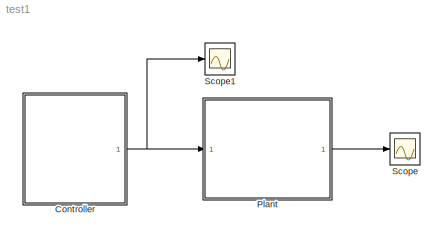
MODEL test1
KIND model
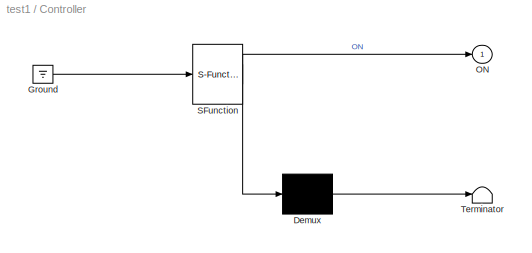
BLOCK [SubSystem] Controller
  ErrorFcn = Stateflow.Translate.translate
  PermitHierarchicalResolution = ExplicitOnly
  Ports = [0, 1]
  RequestExecContextInheritance = off
  SFBlockType = Chart
  SID = 3
  TreatAsAtomicUnit = on
BLOCK [Demux] Controller/ Demux 
  Outputs = 1
  Ports = [1, 1]
  SID = 3::90
BLOCK [Ground] Controller/ Ground 
  SID = 3::92
BLOCK [S-Function] Controller/ SFunction 
  EnableBusSupport = on
  FunctionName = sf_sfun
  PortCounts = [1 2]
  Ports = [1, 2]
  SFcnIsStateOwnerBlock = off
  SFunctionDeploymentMode = off
  SID = 3::89
  Tag = Stateflow S-Function test1 1
BLOCK [Terminator] Controller/ Terminator 
  SID = 3::91
BLOCK [Outport] Controller/ON
  IconDisplay = Port number
  SID = 3::93
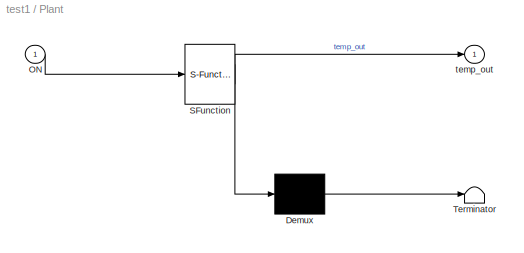
BLOCK [SubSystem] Plant
  ErrorFcn = Stateflow.Translate.translate
  PermitHierarchicalResolution = ExplicitOnly
  Ports = [1, 1]
  RequestExecContextInheritance = off
  SFBlockType = Chart
  SID = 1
  TreatAsAtomicUnit = on
BLOCK [Demux] Plant/ Demux 
  Outputs = 1
  Ports = [1, 1]
  SID = 1::90
BLOCK [S-Function] Plant/ SFunction 
  EnableBusSupport = on
  FunctionName = sf_sfun
  PortCounts = [1 2]
  Ports = [1, 2]
  SFcnIsStateOwnerBlock = off
  SFunctionDeploymentMode = off
  SID = 1::89
  Tag = Stateflow S-Function test1 3
BLOCK [Terminator] Plant/ Terminator 
  SID = 1::91
BLOCK [Inport] Plant/ON
  IconDisplay = Port number
  SID = 1::94
BLOCK [Outport] Plant/temp_out
  IconDisplay = Port number
  SID = 1::93
BLOCK [Scope] Scope
  Floating = off
  NumInputPorts = 1
  Ports = [1]
  SID = 2
  ScopeSpecificationString = Simulink.scopes.TimeScopeBlockCfg('CurrentConfiguration', extmgr.ConfigurationSet(extmgr.Configuration('Core','General UI',true),extmgr.Configuration('Core','Source UI',true),extmgr.Configuration('Sources','WiredSimulink',true),extmgr.Configuration('Visuals','Time Domain',true,'SerializedDisplays',{struct('MinYLimReal','-6.25','MaxYLimReal','56.25','YLabelReal','','MinYLimMag','0.00000','MaxYLimMa...<+1365ch>
BLOCK [Scope] Scope1
  Floating = off
  NumInputPorts = 1
  Ports = [1]
  SID = 4
  ScopeSpecificationString = Simulink.scopes.TimeScopeBlockCfg('CurrentConfiguration', extmgr.ConfigurationSet(extmgr.Configuration('Core','General UI',true),extmgr.Configuration('Core','Source UI',true),extmgr.Configuration('Sources','WiredSimulink',true,'DataLoggingVariableName','ScopeData1'),extmgr.Configuration('Visuals','Time Domain',true,'SerializedDisplays',{struct('MinYLimReal','-0.125','MaxYLimReal','1.125','YLabelRe...<+1382ch>
LINE Controller/ Demux :1 -> Controller/ Terminator :1
LINE Controller/ Ground :1 -> Controller/ SFunction :1
LINE Controller/ SFunction :1 -> Controller/ Demux :1
LINE Controller/ SFunction :2 -> Controller/ON:1
NET Controller:1 -> Plant:1, Scope1:1
LINE Plant/ Demux :1 -> Plant/ Terminator :1
LINE Plant/ SFunction :1 -> Plant/ Demux :1
LINE Plant/ SFunction :2 -> Plant/temp_out:1
LINE Plant/ON:1 -> Plant/ SFunction :1
LINE Plant:1 -> Scope:1
note: NET lines group one-source signal fan-out (src -> all destinations, sorted); 1:1 wires keep LINE
CHART Controller states=2 transitions=2
  STATE_LABEL 'Idle\\ndu:\\nTime_dot = 1;\\nON = 0;'
  STATE_LABEL 'Activated\\ndu:\\nTime_dot = 1;\\nON = 1;'
CHART Plant states=3 transitions=3
  STATE_LABEL 'Q1\\ndu:\\ntemp_dot = 0;\\ntemp_out = temp;'
  STATE_LABEL 'Q2\\ndu:\\ntemp_dot = temp * 2;\\ntemp_out = temp;'
  STATE_LABEL 'Q3\\ndu:\\ntemp_dot = 0;\\ntemp_out = temp;'
